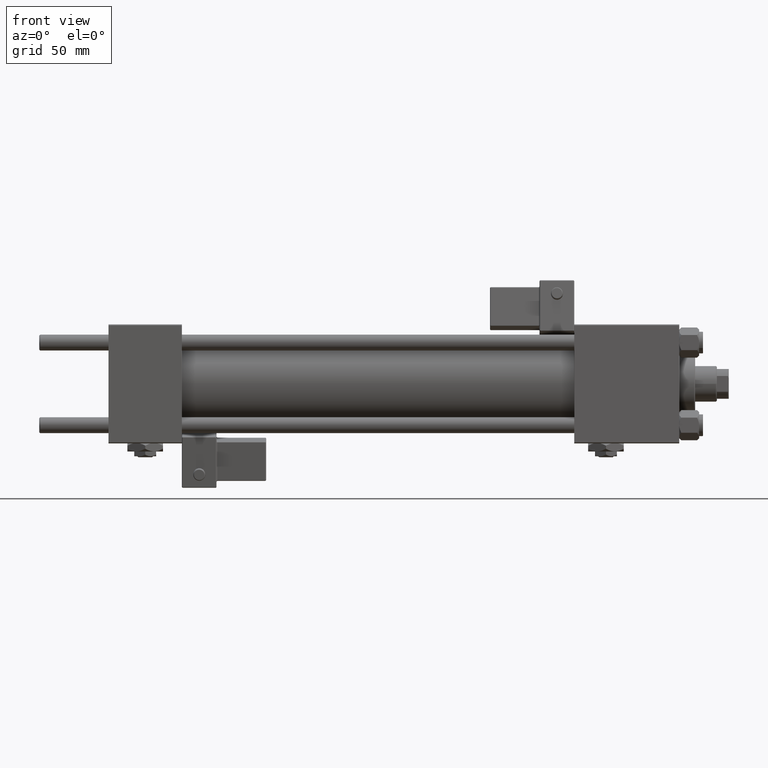
[diagram: clean part render]
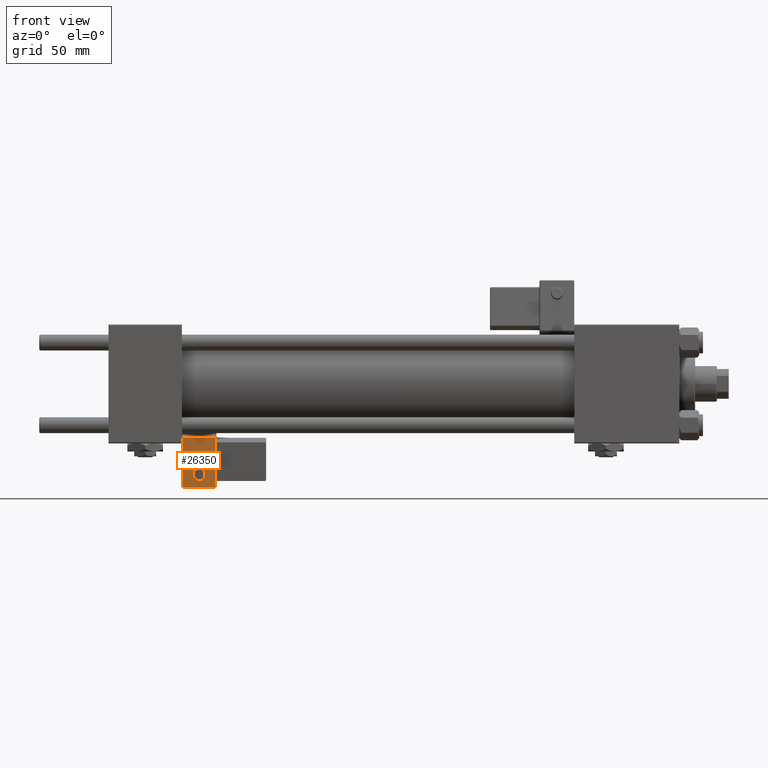
[diagram: same view with one face highlighted and labeled with its STEP entity id]
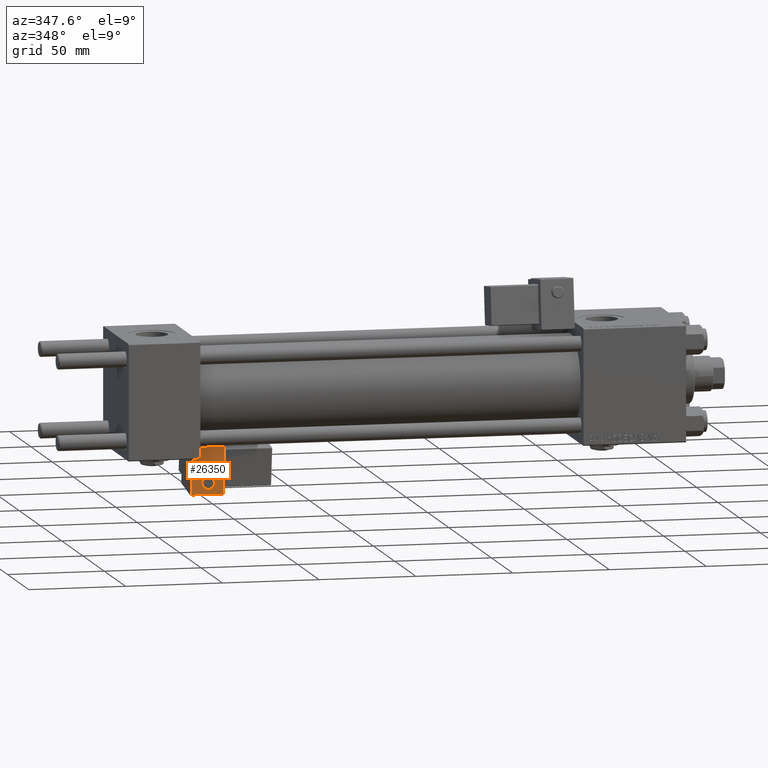
[diagram: same view with one face highlighted and labeled with its STEP entity id]
A machine part, front view. The second image highlights one B-rep face of the part: STEP entity #26350.
A second angle (auxiliary view) of the same face is appended — the face is thin or edge-on in the first view.
In plain terms, the highlighted planar face has unit normal (0, 0.9902, 0.1399).
Its self-contained STEP definition (entity closure, byte-faithful):
#2261 = CARTESIAN_POINT ( 'NONE',  ( -4.336808689942017736E-16, -35.75000000000000000, 9.000000000000001776 ) ) ;
#3070 = AXIS2_PLACEMENT_3D ( 'NONE', #11667, #4263, #24503 ) ;
#3963 = CARTESIAN_POINT ( 'NONE',  ( 4.857225732735059864E-15, -35.75000000000000000, 24.50000000000000000 ) ) ;
#4263 = DIRECTION ( 'NONE',  ( 0.000000000000000000, 1.000000000000000000, 0.000000000000000000 ) ) ;
#6117 = VERTEX_POINT ( 'NONE', #43224 ) ;
#6745 = CARTESIAN_POINT ( 'NONE',  ( -8.250000000000000000, -35.75000000000000000, 24.50000000000000355 ) ) ;
#7138 = VERTEX_POINT ( 'NONE', #20321 ) ;
#7534 = LINE ( 'NONE', #3963, #29365 ) ;
#8459 = ORIENTED_EDGE ( 'NONE', *, *, #32511, .T. ) ;
#11667 = CARTESIAN_POINT ( 'NONE',  ( 0.000000000000000000, -35.75000000000000000, 0.000000000000000000 ) ) ;
#12656 = DIRECTION ( 'NONE',  ( 0.000000000000000000, 0.000000000000000000, 1.000000000000000000 ) ) ;
#12910 = DIRECTION ( 'NONE',  ( 1.000000000000000000, 0.000000000000000000, 0.000000000000000000 ) ) ;
#14831 = ORIENTED_EDGE ( 'NONE', *, *, #36028, .T. ) ;
#15695 = CARTESIAN_POINT ( 'NONE',  ( -4.336808689942017736E-16, -35.75000000000000000, 6.000000000000001776 ) ) ;
#16019 = PLANE ( 'NONE',  #3070 ) ;
#16089 = CIRCLE ( 'NONE', #46705, 2.999999999999999112 ) ;
#16788 = DIRECTION ( 'NONE',  ( -1.000000000000000000, 0.000000000000000000, 1.982541115402065110E-16 ) ) ;
#18274 = VECTOR ( 'NONE', #34663, 1000.000000000000000 ) ;
#20132 = FACE_OUTER_BOUND ( 'NONE', #36901, .T. ) ;
#20250 = VERTEX_POINT ( 'NONE', #31539 ) ;
#20321 = CARTESIAN_POINT ( 'NONE',  ( 8.250000000000000000, -35.75000000000000000, 24.50000000000000000 ) ) ;
#20863 = DIRECTION ( 'NONE',  ( -0.000000000000000000, -1.000000000000000000, -0.000000000000000000 ) ) ;
#20870 = EDGE_CURVE ( 'NONE', #20250, #6117, #26330, .T. ) ;
#20953 = EDGE_CURVE ( 'NONE', #53394, #40855, #16089, .T. ) ;
#21657 = DIRECTION ( 'NONE',  ( 0.000000000000000000, 0.000000000000000000, 1.000000000000000000 ) ) ;
#21783 = LINE ( 'NONE', #43147, #18274 ) ;
#24503 = DIRECTION ( 'NONE',  ( 0.000000000000000000, -0.000000000000000000, 1.000000000000000000 ) ) ;
#24682 = ORIENTED_EDGE ( 'NONE', *, *, #41571, .F. ) ;
#26330 = LINE ( 'NONE', #47146, #34439 ) ;
#26350 = ADVANCED_FACE ( 'NONE', ( #20132, #49700 ), #16019, .F. ) ;
#29365 = VECTOR ( 'NONE', #16788, 1000.000000000000000 ) ;
#30419 = EDGE_LOOP ( 'NONE', ( #24682, #53322 ) ) ;
#30898 = VERTEX_POINT ( 'NONE', #6745 ) ;
#31348 = DIRECTION ( 'NONE',  ( -1.334402673828313339E-16, 0.000000000000000000, 1.000000000000000000 ) ) ;
#31500 = AXIS2_PLACEMENT_3D ( 'NONE', #15695, #20863, #12656 ) ;
#31539 = CARTESIAN_POINT ( 'NONE',  ( -8.250000000000003553, -35.75000000000000000, -0.5000000000000002220 ) ) ;
#32511 = EDGE_CURVE ( 'NONE', #7138, #30898, #7534, .T. ) ;
#34439 = VECTOR ( 'NONE', #12910, 1000.000000000000000 ) ;
#34663 = DIRECTION ( 'NONE',  ( -1.334402673828313093E-16, 0.000000000000000000, -1.000000000000000000 ) ) ;
#35191 = LINE ( 'NONE', #39027, #52289 ) ;
#36028 = EDGE_CURVE ( 'NONE', #6117, #7138, #35191, .T. ) ;
#36901 = EDGE_LOOP ( 'NONE', ( #8459, #53679, #36940, #14831 ) ) ;
#36940 = ORIENTED_EDGE ( 'NONE', *, *, #20870, .T. ) ;
#39027 = CARTESIAN_POINT ( 'NONE',  ( 8.250000000000003553, -35.75000000000000000, 1.100882205908358986E-15 ) ) ;
#39458 = EDGE_CURVE ( 'NONE', #30898, #20250, #21783, .T. ) ;
#40855 = VERTEX_POINT ( 'NONE', #2261 ) ;
#41571 = EDGE_CURVE ( 'NONE', #40855, #53394, #52487, .T. ) ;
#43042 = CARTESIAN_POINT ( 'NONE',  ( -4.336808689942017736E-16, -35.75000000000000000, 6.000000000000001776 ) ) ;
#43147 = CARTESIAN_POINT ( 'NONE',  ( -8.250000000000003553, -35.75000000000000000, 1.100882205908358788E-15 ) ) ;
#43224 = CARTESIAN_POINT ( 'NONE',  ( 8.250000000000003553, -35.75000000000000000, -0.5000000000000002220 ) ) ;
#44717 = CARTESIAN_POINT ( 'NONE',  ( -6.628682924999581145E-17, -35.75000000000000000, 3.000000000000001776 ) ) ;
#46705 = AXIS2_PLACEMENT_3D ( 'NONE', #43042, #50428, #21657 ) ;
#47146 = CARTESIAN_POINT ( 'NONE',  ( 0.000000000000000000, -35.75000000000000000, -0.5000000000000002220 ) ) ;
#49700 = FACE_BOUND ( 'NONE', #30419, .T. ) ;
#50428 = DIRECTION ( 'NONE',  ( -0.000000000000000000, -1.000000000000000000, -0.000000000000000000 ) ) ;
#52289 = VECTOR ( 'NONE', #31348, 1000.000000000000000 ) ;
#52487 = CIRCLE ( 'NONE', #31500, 2.999999999999999112 ) ;
#53322 = ORIENTED_EDGE ( 'NONE', *, *, #20953, .F. ) ;
#53394 = VERTEX_POINT ( 'NONE', #44717 ) ;
#53679 = ORIENTED_EDGE ( 'NONE', *, *, #39458, .T. ) ;